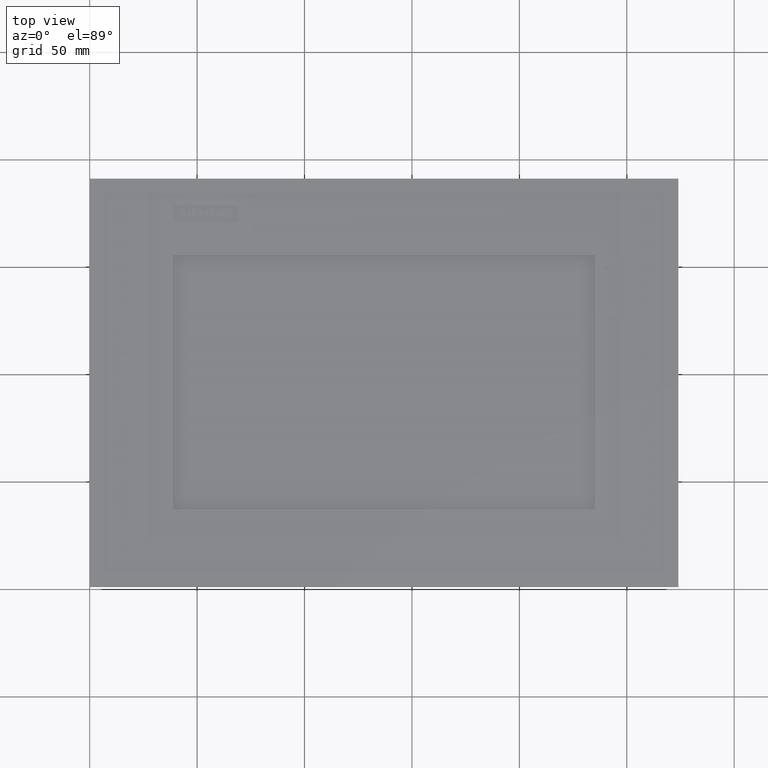
[diagram: clean part render]
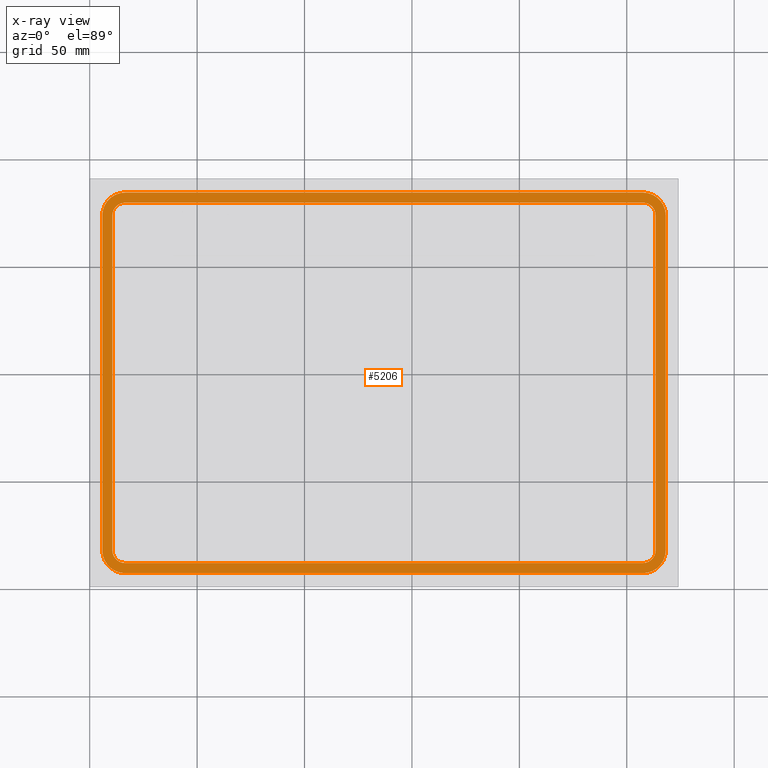
[diagram: x-ray — body ghosted, one internal face saturated and labeled with its STEP entity id]
A machine part, top view, then the same camera in x-ray: the body is ghosted and one INTERNAL B-rep face — a face not visible from any outside direction — is saturated and labeled: STEP entity #5206.
In plain terms, the highlighted planar face has unit normal (-0, -0, 1).
Its self-contained STEP definition (entity closure, byte-faithful):
#371=FACE_BOUND('',#12895,.T.);
#372=FACE_BOUND('',#12896,.T.);
#1018=CIRCLE('',#51837,6.);
#1020=CIRCLE('',#51841,6.);
#1022=CIRCLE('',#51845,6.);
#1024=CIRCLE('',#51850,10.7);
#1026=CIRCLE('',#51854,10.7);
#1028=CIRCLE('',#51858,10.7);
#1030=CIRCLE('',#51862,10.7);
#1032=CIRCLE('',#51865,6.);
#5206=ADVANCED_FACE('',(#371,#372),#7923,.T.);
#7923=PLANE('',#51869);
#12895=EDGE_LOOP('',(#17070,#17071,#17072,#17073,#17074,#17075,#17076,#17077));
#12896=EDGE_LOOP('',(#17078,#17079,#17080,#17081,#17082,#17083,#17084,#17085));
#17070=ORIENTED_EDGE('',*,*,#34057,.T.);
#17071=ORIENTED_EDGE('',*,*,#34061,.T.);
#17072=ORIENTED_EDGE('',*,*,#34064,.T.);
#17073=ORIENTED_EDGE('',*,*,#34067,.T.);
#17074=ORIENTED_EDGE('',*,*,#34070,.T.);
#17075=ORIENTED_EDGE('',*,*,#34073,.T.);
#17076=ORIENTED_EDGE('',*,*,#34076,.T.);
#17077=ORIENTED_EDGE('',*,*,#34079,.T.);
#17078=ORIENTED_EDGE('',*,*,#34035,.F.);
#17079=ORIENTED_EDGE('',*,*,#34039,.F.);
#17080=ORIENTED_EDGE('',*,*,#34042,.F.);
#17081=ORIENTED_EDGE('',*,*,#34045,.F.);
#17082=ORIENTED_EDGE('',*,*,#34048,.F.);
#17083=ORIENTED_EDGE('',*,*,#34051,.F.);
#17084=ORIENTED_EDGE('',*,*,#34054,.F.);
#17085=ORIENTED_EDGE('',*,*,#34081,.F.);
#29365=VERTEX_POINT('',#67663);
#29366=VERTEX_POINT('',#67664);
#29369=VERTEX_POINT('',#67672);
#29371=VERTEX_POINT('',#67678);
#29373=VERTEX_POINT('',#67684);
#29375=VERTEX_POINT('',#67690);
#29377=VERTEX_POINT('',#67696);
#29379=VERTEX_POINT('',#67702);
#29381=VERTEX_POINT('',#67708);
#29382=VERTEX_POINT('',#67709);
#29385=VERTEX_POINT('',#67717);
#29387=VERTEX_POINT('',#67723);
#29389=VERTEX_POINT('',#67729);
#29391=VERTEX_POINT('',#67735);
#29393=VERTEX_POINT('',#67741);
#29395=VERTEX_POINT('',#67747);
#34035=EDGE_CURVE('',#29365,#29366,#40504,.T.);
#34039=EDGE_CURVE('',#29369,#29365,#1018,.T.);
#34042=EDGE_CURVE('',#29371,#29369,#40509,.T.);
#34045=EDGE_CURVE('',#29373,#29371,#1020,.T.);
#34048=EDGE_CURVE('',#29375,#29373,#40513,.T.);
#34051=EDGE_CURVE('',#29377,#29375,#1022,.T.);
#34054=EDGE_CURVE('',#29379,#29377,#40517,.T.);
#34057=EDGE_CURVE('',#29381,#29382,#40520,.T.);
#34061=EDGE_CURVE('',#29382,#29385,#1024,.T.);
#34064=EDGE_CURVE('',#29385,#29387,#40525,.T.);
#34067=EDGE_CURVE('',#29387,#29389,#1026,.T.);
#34070=EDGE_CURVE('',#29389,#29391,#40529,.T.);
#34073=EDGE_CURVE('',#29391,#29393,#1028,.T.);
#34076=EDGE_CURVE('',#29393,#29395,#40533,.T.);
#34079=EDGE_CURVE('',#29395,#29381,#1030,.T.);
#34081=EDGE_CURVE('',#29366,#29379,#1032,.T.);
#40504=LINE('',#67662,#46076);
#40509=LINE('',#67677,#46081);
#40513=LINE('',#67689,#46085);
#40517=LINE('',#67701,#46089);
#40520=LINE('',#67707,#46092);
#40525=LINE('',#67722,#46097);
#40529=LINE('',#67734,#46101);
#40533=LINE('',#67746,#46105);
#46076=VECTOR('',#55708,1.);
#46081=VECTOR('',#55721,1.);
#46085=VECTOR('',#55733,1.);
#46089=VECTOR('',#55745,1.);
#46092=VECTOR('',#55750,1.);
#46097=VECTOR('',#55763,1.);
#46101=VECTOR('',#55775,1.);
#46105=VECTOR('',#55787,1.);
#51837=AXIS2_PLACEMENT_3D('',#67671,#55714,#55715);
#51841=AXIS2_PLACEMENT_3D('',#67683,#55726,#55727);
#51845=AXIS2_PLACEMENT_3D('',#67695,#55738,#55739);
#51850=AXIS2_PLACEMENT_3D('',#67716,#55756,#55757);
#51854=AXIS2_PLACEMENT_3D('',#67728,#55768,#55769);
#51858=AXIS2_PLACEMENT_3D('',#67740,#55780,#55781);
#51862=AXIS2_PLACEMENT_3D('',#67752,#55792,#55793);
#51865=AXIS2_PLACEMENT_3D('',#67755,#55798,#55799);
#51869=AXIS2_PLACEMENT_3D('',#67759,#55806,#55807);
#55708=DIRECTION('',(1.49329994059173E-005,-0.999657976966521,-0.0261520336533901));
#55714=DIRECTION('',(-0.00114182245019614,-0.0261520336533344,0.999657324975557));
#55715=DIRECTION('',(-0.999999348009035,1.49330969025548E-005,-0.00114182244892096));
#55721=DIRECTION('',(-0.999999348009036,1.49330969037127E-005,-0.00114182244892102));
#55726=DIRECTION('',(-0.00114182245019613,-0.0261520336533344,0.999657324975557));
#55727=DIRECTION('',(-1.49329994064695E-005,0.99965797696652,0.0261520336533902));
#55733=DIRECTION('',(-1.49329994059173E-005,0.999657976966521,0.0261520336533901));
#55738=DIRECTION('',(-0.00114182245019613,-0.0261520336533345,0.999657324975557));
#55739=DIRECTION('',(0.999999348009035,-1.49330969048678E-005,0.00114182244892111));
#55745=DIRECTION('',(0.999999348009036,-1.49330969038279E-005,0.00114182244892104));
#55750=DIRECTION('',(1.49329994059173E-005,-0.999657976966521,-0.0261520336533901));
#55756=DIRECTION('',(-0.00114182245019613,-0.0261520336533344,0.999657324975557));
#55757=DIRECTION('',(1.49329994060804E-005,-0.999657976966521,-0.0261520336533902));
#55763=DIRECTION('',(0.999999348009036,-1.49330969037703E-005,0.00114182244892104));
#55768=DIRECTION('',(-0.00114182245019613,-0.0261520336533345,0.999657324975557));
#55769=DIRECTION('',(0.999999348009036,-1.49330969033762E-005,0.00114182244892104));
#55775=DIRECTION('',(-1.49329994057391E-005,0.999657976966521,0.0261520336533901));
#55780=DIRECTION('',(-0.00114182245019613,-0.0261520336533344,0.999657324975557));
#55781=DIRECTION('',(-1.49329994060804E-005,0.999657976966521,0.0261520336533901));
#55787=DIRECTION('',(-0.999999348009036,1.49330969037703E-005,-0.00114182244892103));
#55792=DIRECTION('',(-0.00114182245019614,-0.0261520336533344,0.999657324975557));
#55793=DIRECTION('',(-0.999999348009035,1.49330969033762E-005,-0.00114182244892104));
#55798=DIRECTION('',(-0.00114182245019613,-0.0261520336533344,0.999657324975557));
#55799=DIRECTION('',(1.49329994064695E-005,-0.99965797696652,-0.02615203365339));
#55806=DIRECTION('',(-0.00114182245019613,-0.0261520336533344,0.999657324975557));
#55807=DIRECTION('',(0.,-0.999657976632066,-0.0261520507013193));
#67662=CARTESIAN_POINT('',(-127.028436363229,64.6516291621185,-6.13197230903349));
#67663=CARTESIAN_POINT('',(-127.028436363229,64.6516291621185,-6.13197230903349));
#67664=CARTESIAN_POINT('',(-127.026109801922,-91.0950836492654,-10.2064591522317));
#67671=CARTESIAN_POINT('',(-121.028440275175,64.6515395635373,-6.12512137433996));
#67672=CARTESIAN_POINT('',(-121.028529873172,70.6494874253362,-5.96820917241962));
#67677=CARTESIAN_POINT('',(119.871313062205,70.6458900422921,-5.69314414447455));
#67678=CARTESIAN_POINT('',(119.871313062206,70.6458900422922,-5.69314414447455));
#67683=CARTESIAN_POINT('',(119.871402660202,64.6479421804931,-5.85005634639489));
#67684=CARTESIAN_POINT('',(125.871398748256,64.6478525819115,-5.84320541170136));
#67689=CARTESIAN_POINT('',(125.873725309563,-91.0988602294725,-9.91769225489954));
#67690=CARTESIAN_POINT('',(125.873725309564,-91.0988602294735,-9.91769225489957));
#67695=CARTESIAN_POINT('',(119.873729221509,-91.0987706308921,-9.92454318959309));
#67696=CARTESIAN_POINT('',(119.873818819505,-97.0967184926902,-10.0814553915134));
#67701=CARTESIAN_POINT('',(-121.026024115872,-97.093121109646,-10.3565204194585));
#67702=CARTESIAN_POINT('',(-121.026024115872,-97.0931211096467,-10.3565204194585));
#67707=CARTESIAN_POINT('',(-131.728433298872,64.651699347674,-6.13733887454342));
#67708=CARTESIAN_POINT('',(-131.728433298872,64.651699347674,-6.13733887454342));
#67709=CARTESIAN_POINT('',(-131.726106737564,-91.09501346371,-10.2118257177416));
#67716=CARTESIAN_POINT('',(-121.026113713868,-91.0951732478476,-10.1996082175382));
#67717=CARTESIAN_POINT('',(-121.025953930775,-101.791513601389,-10.4794349776294));
#67722=CARTESIAN_POINT('',(-121.025953930775,-101.791513601389,-10.4794349776294));
#67723=CARTESIAN_POINT('',(119.873889004603,-101.795110984433,-10.2043699496843));
#67728=CARTESIAN_POINT('',(119.873729221509,-91.0987706308921,-9.92454318959309));
#67729=CARTESIAN_POINT('',(130.573722245206,-91.098930415029,-9.91232568938964));
#67734=CARTESIAN_POINT('',(130.573722245206,-91.0989304150279,-9.91232568938961));
#67735=CARTESIAN_POINT('',(130.571395683898,64.6477823963561,-5.83783884619143));
#67740=CARTESIAN_POINT('',(119.871402660202,64.6479421804931,-5.85005634639488));
#67741=CARTESIAN_POINT('',(119.871242877108,75.3442825340349,-5.57022958630361));
#67746=CARTESIAN_POINT('',(119.871242877108,75.3442825340347,-5.57022958630361));
#67747=CARTESIAN_POINT('',(-121.028600058269,75.3478799170789,-5.84529461424869));
#67752=CARTESIAN_POINT('',(-121.028440275175,64.6515395635373,-6.12512137433996));
#67755=CARTESIAN_POINT('',(-121.026113713868,-91.0951732478476,-10.1996082175382));
#67759=CARTESIAN_POINT('',(-121.026113713868,-91.0951732478476,-10.1996082175382));